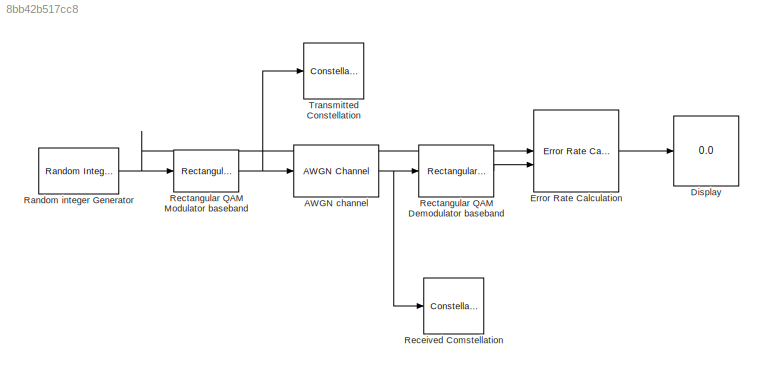
MODEL slx_8bb42b517cc8
KIND model
CONFIG AbsTol = auto
CONFIG EnableMultiTasking = off
CONFIG FixedStep = auto
CONFIG MaxStep = auto
CONFIG MinStep = auto
CONFIG RelTol = 1e-3
CONFIG SampleTimeConstraint = Unconstrained
CONFIG SolverName = VariableStepAuto
CONFIG StartTime = 0.0
CONFIG StopTime = 10.0
BLOCK [Reference] AWGN channel  REF=commchan3/AWGN
Channel
  SourceBlock = commchan3/AWGN\nChannel
  SourceType = AWGN Channel
BLOCK [Display] Display
  Decimation = 1
BLOCK [Reference] Error Rate Calculation  REF=commsink2/Error Rate
Calculation
  LibrarySourceBlock = commhdlsink/Error Rate\nCalculation
  SourceBlock = commsink2/Error Rate\nCalculation
  SourceType = Error Rate Calculation
BLOCK [Reference] Random integer Generator  REF=commrandsrc3/Random Integer
Generator
  SourceBlock = commrandsrc3/Random Integer\nGenerator
  SourceType = Random Integer Generator
BLOCK [ConstellationDiagram] Received Comstellation
  GraphicalSettings = {"Style":{"BackgroundColor":[0.12941176470588237,0.12941176470588237,0.12941176470588237],"AxesColor":[0.07058823529411765,0.07058823529411765,0.07058823529411765],"LabelsColor":[0.8509803921568627,0.8509803921568627,0.8509803921568627],"LineStyle":["NONE"],"LineColor":[[1,0,0]],"LineWidth":[1],"Marker":["+"],"IsRefLine":[true],"FontSize":"small"},"ReferenceConstellation":[{"RefConstellationValue"...<+159ch>
  ScopeFrameLocation = window
  WasSavedAsWebScope = on
  WindowPosition = [81.000000,123.000000,600.000000,600.000000,]
BLOCK [Reference] Rectangular QAM Demodulator baseband  REF=commdigbbndam3/Rectangular QAM
Demodulator
Baseband
  LibrarySourceBlock = commhdldigbbndam/Rectangular QAM\nDemodulator\nBaseband
  SourceBlock = commdigbbndam3/Rectangular QAM\nDemodulator\nBaseband
  SourceType = Rectangular QAM Demodulator Baseband
BLOCK [Reference] Rectangular QAM Modulator baseband  REF=commdigbbndam3/Rectangular QAM
Modulator
Baseband
  LibrarySourceBlock = commhdldigbbndam/Rectangular QAM\nModulator\nBaseband
  SourceBlock = commdigbbndam3/Rectangular QAM\nModulator\nBaseband
  SourceType = Rectangular QAM Modulator Baseband
BLOCK [ConstellationDiagram] Transmitted Constellation
  GraphicalSettings = {"GraphicalSettings":{"Style":{}}}
  ScopeFrameLocation = window
  WasSavedAsWebScope = on
  WindowPosition = [769.000000,457.000000,766.000000,376.000000,]
NET AWGN channel:1 -> Received Comstellation:1, Rectangular QAM Demodulator baseband:1
LINE Error Rate Calculation:1 -> Display:1
NET Random integer Generator:1 -> Error Rate Calculation:1, Rectangular QAM Modulator baseband:1
LINE Rectangular QAM Demodulator baseband:1 -> Error Rate Calculation:2
NET Rectangular QAM Modulator baseband:1 -> AWGN channel:1, Transmitted Constellation:1
note: NET lines group one-source signal fan-out (src -> all destinations, sorted); 1:1 wires keep LINE
